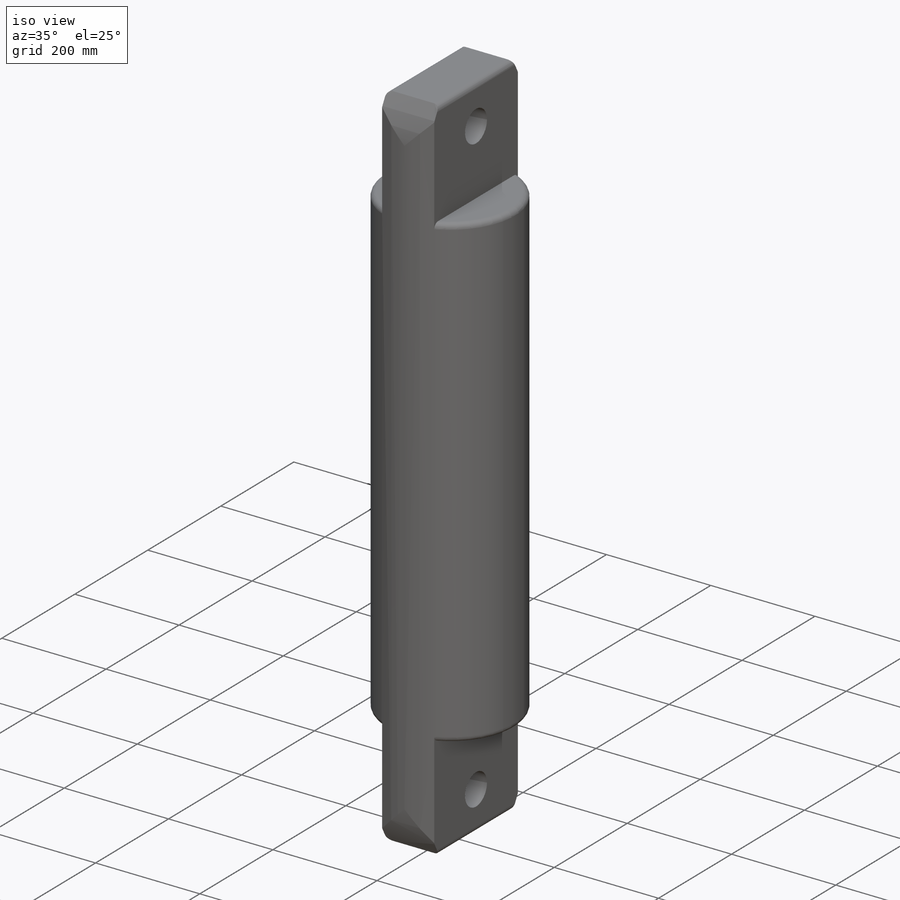
[diagram: iso view]
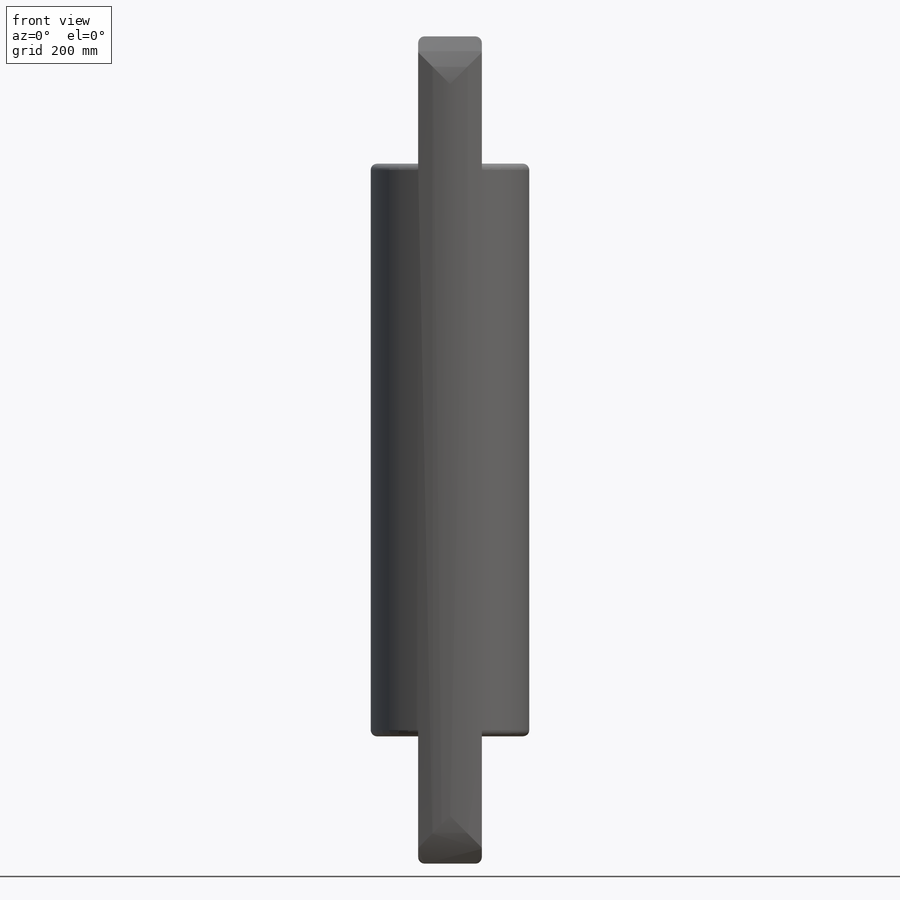
[diagram: front view]
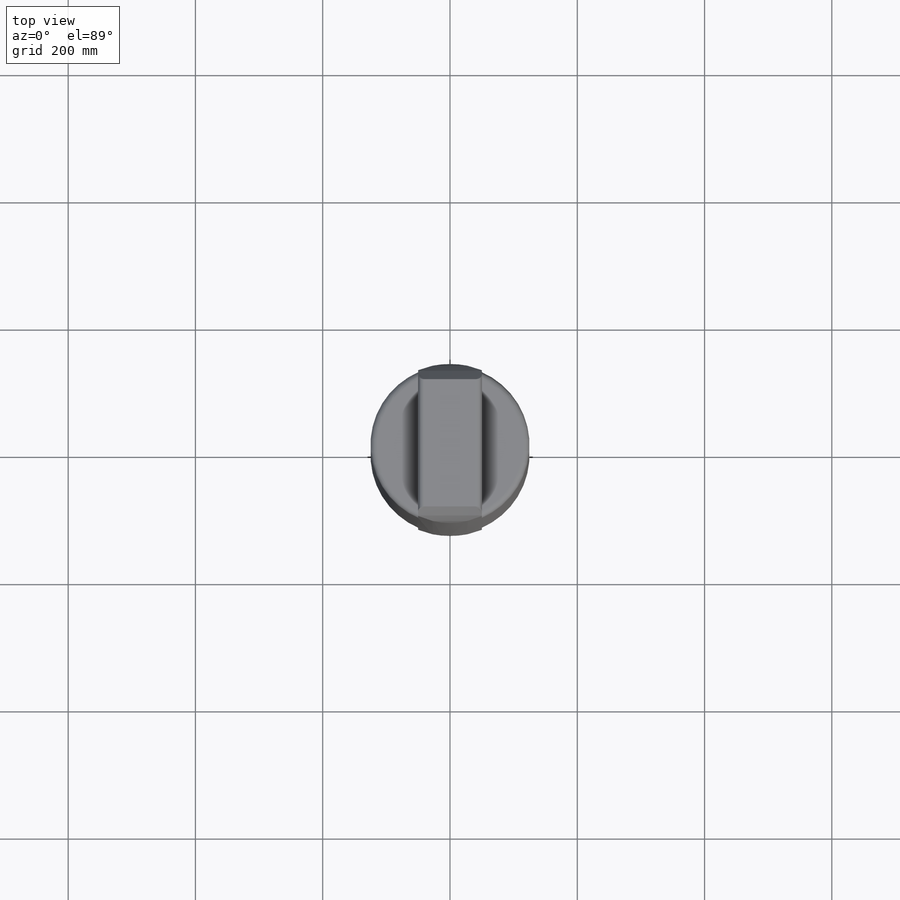
[diagram: top view]
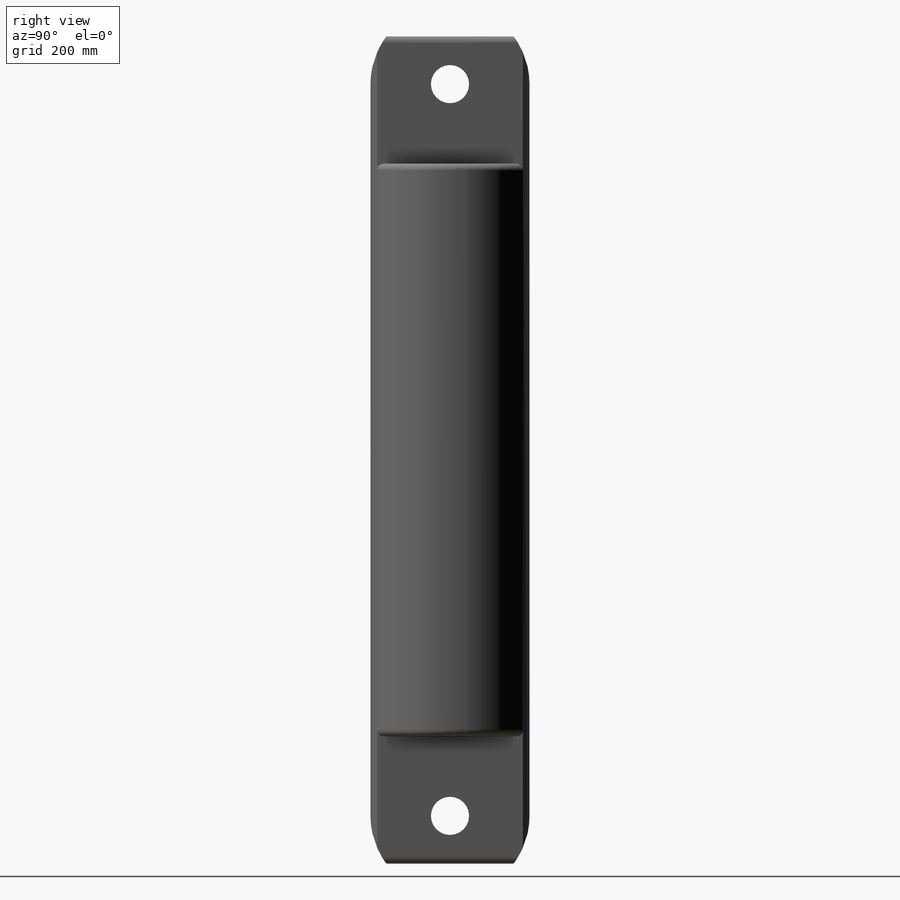
[diagram: right view]
SOLIDWORKS PART (.sldprt)
format: sldprt  version: not decoded by parser v0  size: 227,328 bytes
history: native  units: mm
features: sketch x4, fillet x3, cut_extrude x2, material x1, extrude x1, plane x1, mirror x1 (+13 scaffold rows collapsed)
feature tree (26):
  scaffold x13  (default folders/planes/origin — collapsed)
  material  "Material <not specified>"
  sketch  "Sketch1"  dims[D1=250.0mm]
  extrude  "Boss-Extrude1"  Depth=650mm
  sketch  "Sketch2"  dims[D1=100.0mm]
  cut_extrude  "Cut-Extrude1"  Depth=200mm
  sketch  "Sketch3"  dims[D1=60.0mm D2=75.0mm]
  sketch  "Sketch4"  dims[D2=60.0mm D1=75.0mm]
  cut_extrude  "Cut-Extrude4"  [1 undecoded]
  fillet  "Fillet2"  Radius=10mm
  plane  "Plane1"
  mirror  "Mirror4"
  fillet  "Fillet3"  Radius=10mm
  fillet  "Fillet4"  Radius=10mm
decode coverage: 9 of 11 modeling features carry decoded parameters
note: 1 parameter value undecoded
note: suppression state not decoded; provenance and decode notes live in map.json
